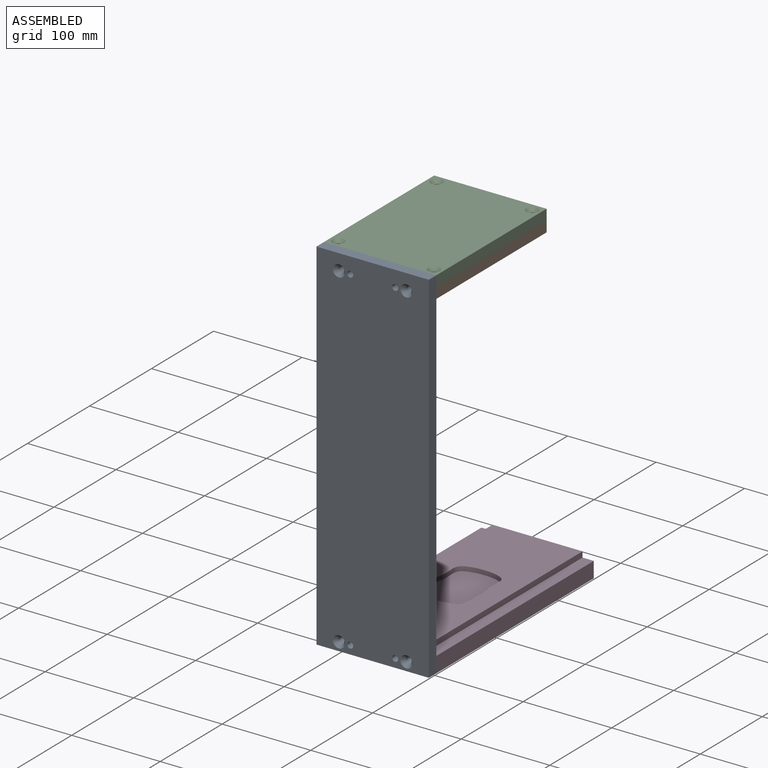
[diagram: assembled view]
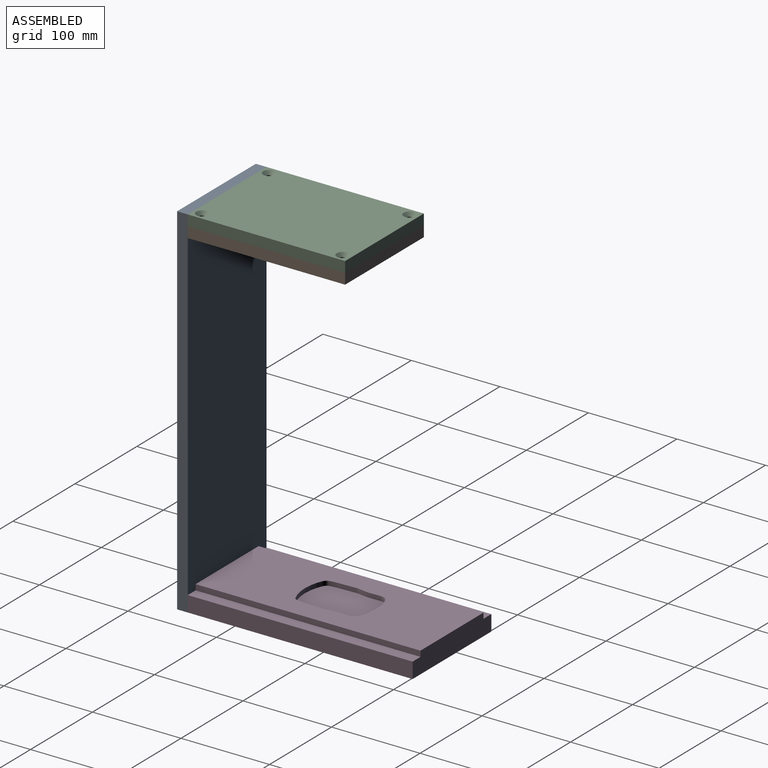
[diagram: assembled view, second angle]
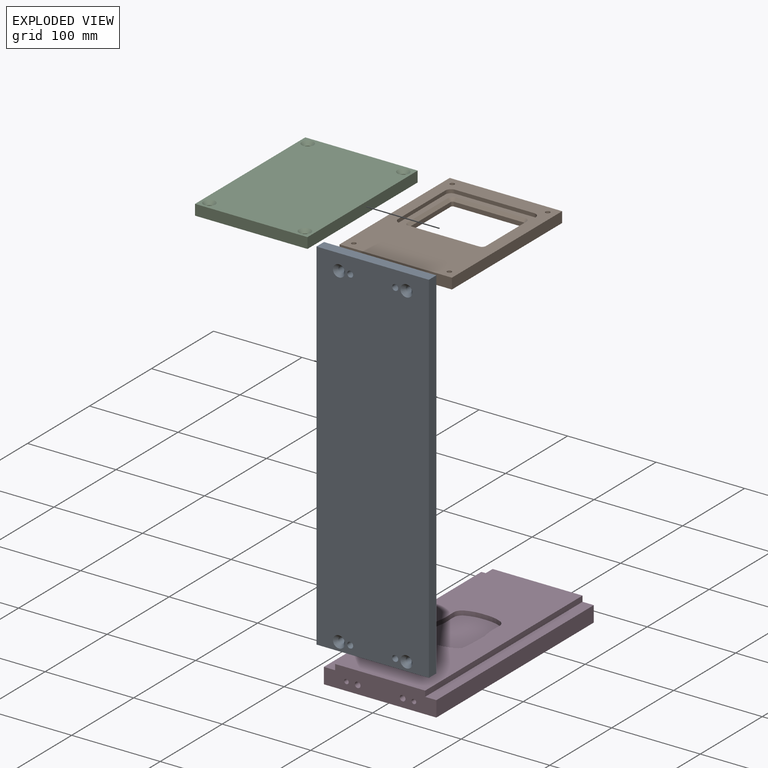
[diagram: exploded view]
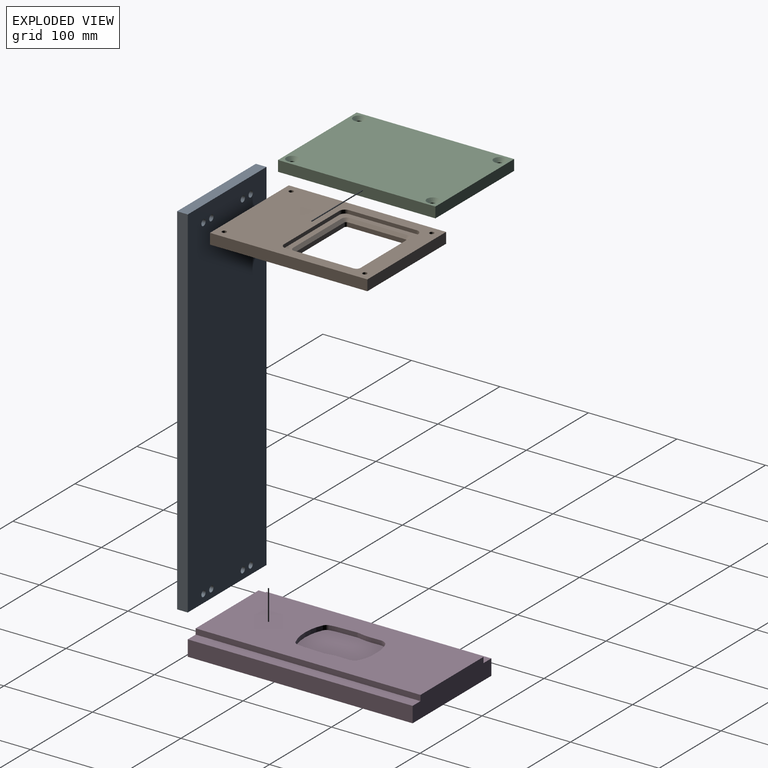
[diagram: exploded view, second angle]
ASSEMBLY  parts=4 mates=3
PART A: 18 faces, bbox 127x12.1x406.4 mm
  f0: plane 127x12.07mm, normal (0,0,1), area 1532.3mm2, adj f1,f3,f4,f5
  f1: plane 406.4x12.07mm, normal (-1,0,0), area 4903.2mm2, adj f0,f2,f4,f5
  f2: plane 127x12.07mm, normal (0,0,-1), area 1532.3mm2, adj f1,f3,f4,f5
  f3: plane 406.4x12.07mm, normal (1,0,0), area 4903.2mm2, adj f0,f2,f4,f5
  f4: plane 406.4x127mm, normal (0,1,0), area 51326mm2, adj f0,f1,f2,f3,f6,f8,f10,f12
  f5: plane 406.4x127mm, normal (0,-1,0), area 50897.9mm2, adj f0,f1,f2,f3,f7,f9,f11,f13
  f6: cylinder r=3.38mm len=8.19mm, axis (0,-1,0), area 173.9mm2, adj f4,f7
  f7: cone r=3.38mm half-angle=41deg, axis (0,-1,0), area 163.1mm2, adj f5,f6
  f8: cylinder r=3.38mm len=8.19mm, axis (0,-1,0), area 173.9mm2, adj f4,f9
  f9: cone r=3.38mm half-angle=41deg, axis (0,-1,0), area 163.1mm2, adj f5,f8
  f10: cylinder r=3.38mm len=8.19mm, axis (0,-1,0), area 173.9mm2, adj f4,f11
  f11: cone r=3.38mm half-angle=41deg, axis (0,-1,0), area 163.1mm2, adj f5,f10
  f12: cylinder r=3.38mm len=8.19mm, axis (0,-1,0), area 173.9mm2, adj f4,f13
  f13: cone r=3.38mm half-angle=41deg, axis (0,-1,0), area 163.1mm2, adj f5,f12
  f14: cylinder r=3.38mm len=12.07mm, axis (0,-1,0), area 256.1mm2, adj f4,f5
  f15: cylinder r=3.38mm len=12.07mm, axis (0,-1,0), area 256.1mm2, adj f4,f5
  f16: cylinder r=3.38mm len=12.07mm, axis (0,-1,0), area 256.1mm2, adj f4,f5
  f17: cylinder r=3.38mm len=12.07mm, axis (0,-1,0), area 256.1mm2, adj f4,f5
PART B: 43 faces, bbox 127x177.8x12.1 mm
  f0: cylinder r=2.38mm len=4.83mm, axis (0,0,1), area 18.1mm2, adj f1,f7,f12,f41
  f1: plane 65.21x4.83mm, normal (-1,0,0), area 314.7mm2, adj f0,f2,f12,f39
  f2: cylinder r=2.38mm len=4.83mm, axis (0,0,1), area 18.1mm2, adj f1,f3,f12,f37
  f3: plane 77.91x4.83mm, normal (0,1,0), area 376mm2, adj f2,f4,f12,f35
  f4: cylinder r=2.38mm len=4.83mm, axis (0,0,1), area 18.1mm2, adj f3,f5,f12,f36
  f5: plane 65.21x4.83mm, normal (1,0,0), area 314.7mm2, adj f4,f6,f12,f38
  f6: cylinder r=2.38mm len=4.83mm, axis (0,0,1), area 18.1mm2, adj f5,f7,f12,f40
  f7: plane 77.91x4.83mm, normal (0,-1,0), area 376mm2, adj f0,f6,f12,f42
  f8: plane 127x12.07mm, normal (0,1,0), area 1427.5mm2, adj f9,f11,f12,f13,f28,f30,f32,f34
  f9: plane 177.8x12.07mm, normal (-1,0,0), area 2145.2mm2, adj f8,f10,f12,f13
  f10: plane 127x12.07mm, normal (0,-1,0), area 1532.3mm2, adj f9,f11,f12,f13
  f11: plane 177.8x12.07mm, normal (1,0,0), area 2145.2mm2, adj f8,f10,f12,f13
  f12: plane 177.8x127mm, normal (0,0,-1), area 16718.1mm2, adj f0,f1,f2,f3,f4,f5,f6,f7
  f13: plane 177.8x127mm, normal (0,0,1), area 13454.3mm2, adj f8,f9,f10,f11,f15,f16,f17,f18
  f14: plane 101.98x89.03mm, normal (0,0,1), area 2275.8mm2, adj f15,f16,f17,f18,f19,f20,f21,f22
  f15: plane 76.33x4.06mm, normal (-1,0,0), area 310.2mm2, adj f13,f14,f16,f22
  f16: cylinder r=6.35mm len=6.35mm, axis (0,0,1), area 40.5mm2, adj f13,f14,f15,f17
  f17: plane 89.28x4.06mm, normal (0,-1,0), area 362.8mm2, adj f13,f14,f16,f18
  f18: cylinder r=6.35mm len=6.35mm, axis (0,0,1), area 40.5mm2, adj f13,f14,f17,f19
  f19: plane 76.33x4.06mm, normal (1,0,0), area 310.2mm2, adj f13,f14,f18,f20
  f20: cylinder r=6.35mm len=6.35mm, axis (0,0,1), area 40.5mm2, adj f13,f14,f19,f21
  f21: plane 89.28x4.06mm, normal (0,1,0), area 362.8mm2, adj f13,f14,f20,f22
  f22: cylinder r=6.35mm len=6.35mm, axis (0,0,1), area 40.5mm2, adj f13,f14,f15,f21
  f23: cylinder r=2.55mm len=12.07mm, axis (0,0,1), area 193.5mm2, adj f12,f13
  f24: cylinder r=2.55mm len=12.07mm, axis (0,0,1), area 193.5mm2, adj f12,f13
  f25: cylinder r=2.55mm len=12.07mm, axis (0,0,1), area 193.5mm2, adj f12,f13
  f26: cylinder r=2.55mm len=12.07mm, axis (0,0,1), area 193.5mm2, adj f12,f13
  f27: cone r=0mm half-angle=59deg, axis (0,1,0), area 37.2mm2, adj f28
  f28: cylinder r=3.19mm len=16.51mm, axis (0,1,0), area 330.7mm2, adj f8,f27
  f29: cone r=0mm half-angle=59deg, axis (0,1,0), area 37.2mm2, adj f30
  f30: cylinder r=3.19mm len=16.51mm, axis (0,1,0), area 330.7mm2, adj f8,f29
  f31: cone r=0mm half-angle=59deg, axis (0,1,0), area 23.9mm2, adj f32
  f32: cylinder r=2.55mm len=16.51mm, axis (0,1,0), area 264.8mm2, adj f8,f31
  f33: cone r=0mm half-angle=59deg, axis (0,1,0), area 23.9mm2, adj f34
  f34: cylinder r=2.55mm len=16.51mm, axis (0,1,0), area 264.8mm2, adj f8,f33
  f35: plane 77.91x3.18mm, normal (0,0.71,0.71), area 349.8mm2, adj f3,f14,f36,f37
  f36: cone r=5.56mm half-angle=45deg, axis (0,0,1), area 28mm2, adj f4,f14,f35,f38
  f37: cone r=5.56mm half-angle=45deg, axis (0,0,1), area 28mm2, adj f2,f14,f35,f39
  f38: plane 65.21x3.18mm, normal (0.71,0,0.71), area 292.8mm2, adj f5,f14,f36,f40
  f39: plane 65.21x3.18mm, normal (-0.71,0,0.71), area 292.8mm2, adj f1,f14,f37,f41
  f40: cone r=5.56mm half-angle=45deg, axis (0,0,1), area 28mm2, adj f6,f14,f38,f42
  f41: cone r=5.56mm half-angle=45deg, axis (0,0,1), area 28mm2, adj f0,f14,f39,f42
  f42: plane 77.91x3.18mm, normal (0,-0.71,0.71), area 349.8mm2, adj f7,f14,f40,f41
PART C: 32 faces, bbox 127x177.8x12.1 mm
  f0: plane 127x12.07mm, normal (0,1,0), area 1532.3mm2, adj f1,f3,f4,f5
  f1: plane 177.8x12.07mm, normal (-1,0,0), area 2145.2mm2, adj f0,f2,f4,f5
  f2: plane 127x12.07mm, normal (0,-1,0), area 1532.3mm2, adj f1,f3,f4,f5
  f3: plane 177.8x12.07mm, normal (1,0,0), area 2145.2mm2, adj f0,f2,f4,f5
  f4: plane 177.8x127mm, normal (0,0,-1), area 22009.1mm2, adj f0,f1,f2,f3,f25,f27,f29,f31
  f5: plane 177.8x127mm, normal (0,0,1), area 13392.7mm2, adj f0,f1,f2,f3,f6,f7,f8,f9
  f6: plane 89.28x8.89mm, normal (0,-1,0), area 793.7mm2, adj f5,f7,f21,f22
  f7: cylinder r=6.35mm len=8.89mm, axis (0,0,1), area 88.7mm2, adj f5,f6,f8,f22
  f8: plane 76.33x8.89mm, normal (1,0,0), area 678.5mm2, adj f5,f7,f9,f22
  f9: cylinder r=6.35mm len=8.89mm, axis (0,0,1), area 88.7mm2, adj f5,f8,f10,f22
  f10: plane 89.28x8.89mm, normal (0,1,0), area 793.7mm2, adj f5,f9,f11,f22
  f11: cylinder r=6.35mm len=8.89mm, axis (0,0,1), area 88.7mm2, adj f5,f10,f12,f22
  f12: plane 76.33x8.89mm, normal (-1,0,0), area 678.5mm2, adj f5,f11,f21,f22
  f13: cylinder r=3.17mm len=8.89mm, axis (0,0,1), area 44.3mm2, adj f14,f20,f22,f23
  f14: plane 57.15x8.89mm, normal (1,0,0), area 508.1mm2, adj f13,f15,f22,f23
  f15: cylinder r=3.17mm len=8.89mm, axis (0,0,1), area 44.3mm2, adj f14,f16,f22,f23
  f16: plane 69.85x8.89mm, normal (0,-1,0), area 621mm2, adj f15,f17,f22,f23
  f17: cylinder r=3.17mm len=8.89mm, axis (0,0,1), area 44.3mm2, adj f16,f18,f22,f23
  f18: plane 57.15x8.89mm, normal (-1,0,0), area 508.1mm2, adj f17,f19,f22,f23
  f19: cylinder r=3.17mm len=8.89mm, axis (0,0,1), area 44.3mm2, adj f18,f20,f22,f23
  f20: plane 69.85x8.89mm, normal (0,1,0), area 621mm2, adj f13,f19,f22,f23
  f21: cylinder r=6.35mm len=8.89mm, axis (0,0,1), area 88.7mm2, adj f5,f6,f12,f22
  f22: plane 101.98x89.03mm, normal (0,0,1), area 4214.4mm2, adj f6,f7,f8,f9,f10,f11,f12,f13
  f23: plane 76.2x63.5mm, normal (0,0,1), area 4830mm2, adj f13,f14,f15,f16,f17,f18,f19,f20
  f24: cylinder r=3.38mm len=8.19mm, axis (0,0,-1), area 173.9mm2, adj f5,f25
  f25: cone r=3.38mm half-angle=41deg, axis (0,0,-1), area 163.1mm2, adj f4,f24
  f26: cylinder r=3.38mm len=8.19mm, axis (0,0,-1), area 173.9mm2, adj f5,f27
  f27: cone r=3.38mm half-angle=41deg, axis (0,0,-1), area 163.1mm2, adj f4,f26
  f28: cylinder r=3.38mm len=8.19mm, axis (0,0,-1), area 173.9mm2, adj f5,f29
  f29: cone r=3.38mm half-angle=41deg, axis (0,0,-1), area 163.1mm2, adj f4,f28
  f30: cylinder r=3.38mm len=8.19mm, axis (0,0,-1), area 173.9mm2, adj f5,f31
  f31: cone r=3.38mm half-angle=41deg, axis (0,0,-1), area 163.1mm2, adj f4,f30
PART D: 41 faces, bbox 127x254x24.1 mm
  f0: plane 254x17.78mm, normal (-1,0,0), area 4516.1mm2, adj f1,f7,f8,f9
  f1: plane 254x127mm, normal (0,0,-1), area 32258mm2, adj f0,f2,f8,f9
  f2: plane 254x17.78mm, normal (1,0,0), area 4516.1mm2, adj f1,f3,f8,f9
  f3: plane 254x12.7mm, normal (0,0,1), area 3225.8mm2, adj f2,f4,f8,f9
  f4: plane 254x6.35mm, normal (1,0,0), area 1612.9mm2, adj f3,f5,f8,f9
  f5: plane 254x101.6mm, normal (0,0,1), area 21803.7mm2, adj f4,f6,f8,f9,f18,f19,f20,f21
  f6: plane 254x6.35mm, normal (-1,0,0), area 1612.9mm2, adj f5,f7,f8,f9
  f7: plane 254x12.7mm, normal (0,0,1), area 3225.8mm2, adj f0,f6,f8,f9
  f8: plane 127x24.13mm, normal (0,1,0), area 2903.2mm2, adj f0,f1,f2,f3,f4,f5,f6,f7
  f9: plane 127x24.13mm, normal (0,-1,0), area 2798.4mm2, adj f0,f1,f2,f3,f4,f5,f6,f7
  f10: cone r=0mm half-angle=59deg, axis (0,-1,0), area 23.9mm2, adj f11
  f11: cylinder r=2.55mm len=16.51mm, axis (0,-1,0), area 264.8mm2, adj f9,f10
  f12: cone r=0mm half-angle=59deg, axis (0,-1,0), area 23.9mm2, adj f13
  f13: cylinder r=2.55mm len=16.51mm, axis (0,-1,0), area 264.8mm2, adj f9,f12
  f14: cone r=0mm half-angle=59deg, axis (0,-1,0), area 37.2mm2, adj f15
  f15: cylinder r=3.19mm len=12.7mm, axis (0,-1,0), area 254.4mm2, adj f9,f14
  f16: cone r=0mm half-angle=59deg, axis (0,-1,0), area 37.2mm2, adj f17
  f17: cylinder r=3.19mm len=12.7mm, axis (0,-1,0), area 254.4mm2, adj f9,f16
  f18: plane 8.21x5.08mm, normal (0,-1,0), area 41.7mm2, adj f5,f19,f39,f40
  f19: cylinder r=41.11mm len=16.22mm, axis (0,0,1), area 85.1mm2, adj f5,f18,f20,f40
  f20: cylinder r=9.65mm len=8.73mm, axis (0,0,1), area 55.8mm2, adj f5,f19,f21,f40
  f21: cylinder r=158.33mm len=8.02mm, axis (0,0,1), area 40.7mm2, adj f5,f20,f22,f40
  f22: cylinder r=59.93mm len=8.77mm, axis (0,0,1), area 44.6mm2, adj f5,f21,f23,f40
  f23: cylinder r=432.65mm len=9.71mm, axis (0,0,1), area 49.9mm2, adj f5,f22,f24,f40
  f24: cylinder r=9.65mm len=5.08mm, axis (0,0,1), area 10mm2, adj f5,f23,f25,f40
  f25: plane 21.41x5.08mm, normal (1,0.04,0), area 108.9mm2, adj f5,f24,f26,f40
  f26: cylinder r=57.26mm len=8.41mm, axis (0,0,1), area 43.2mm2, adj f5,f25,f27,f40
  f27: cylinder r=6.48mm len=5.08mm, axis (0,0,1), area 30.6mm2, adj f5,f26,f28,f40
  f28: cylinder r=50.93mm len=21.38mm, axis (0,0,1), area 112.1mm2, adj f5,f27,f29,f40
  f29: plane 5.08x1.35mm, normal (0,1,0), area 6.9mm2, adj f5,f28,f30,f40
  f30: cylinder r=50.93mm len=21.38mm, axis (0,0,1), area 112.1mm2, adj f5,f29,f31,f40
  f31: cylinder r=6.48mm len=5.08mm, axis (0,0,1), area 30.6mm2, adj f5,f30,f32,f40
  f32: cylinder r=57.26mm len=8.41mm, axis (0,0,1), area 43.2mm2, adj f5,f31,f33,f40
  f33: plane 21.41x5.08mm, normal (-1,0.04,0), area 108.9mm2, adj f5,f32,f34,f40
  f34: cylinder r=9.65mm len=5.08mm, axis (0,0,1), area 10mm2, adj f5,f33,f35,f40
  f35: cylinder r=432.65mm len=9.71mm, axis (0,0,1), area 49.9mm2, adj f5,f34,f36,f40
  f36: cylinder r=59.93mm len=8.77mm, axis (0,0,1), area 44.6mm2, adj f5,f35,f37,f40
  f37: cylinder r=158.33mm len=8.02mm, axis (0,0,1), area 40.7mm2, adj f5,f36,f38,f40
  f38: cylinder r=9.65mm len=8.73mm, axis (0,0,1), area 55.8mm2, adj f5,f37,f39,f40
  f39: cylinder r=41.11mm len=16.22mm, axis (0,0,1), area 85.1mm2, adj f5,f18,f38,f40
  f40: plane 79.95x55.25mm, normal (0,0,1), area 4002.7mm2, adj f18,f19,f20,f21,f22,f23,f24,f25
PLACE A t=(0,0,190.94)mm
PLACE B rot(axis=(0,0,1),180deg) t=(0,189.86,585.28)mm
PLACE C rot(axis=(1,0,0),180deg) t=(0,189.87,585.28)mm
PLACE D t=(0,12.07,190.94)mm fixed
MATE slider C.f3 <-> A.f3  axis (1,0,0) through (63.5,12.07,597.34)mm
MATE fastened B.f33 <-> A.f10  axis (0,-1,0) through (-38.1,12.06,579.24)mm
MATE fastened A.f2 <-> D.f1  axis (0,0,1) through (63.5,12.07,190.94)mm
